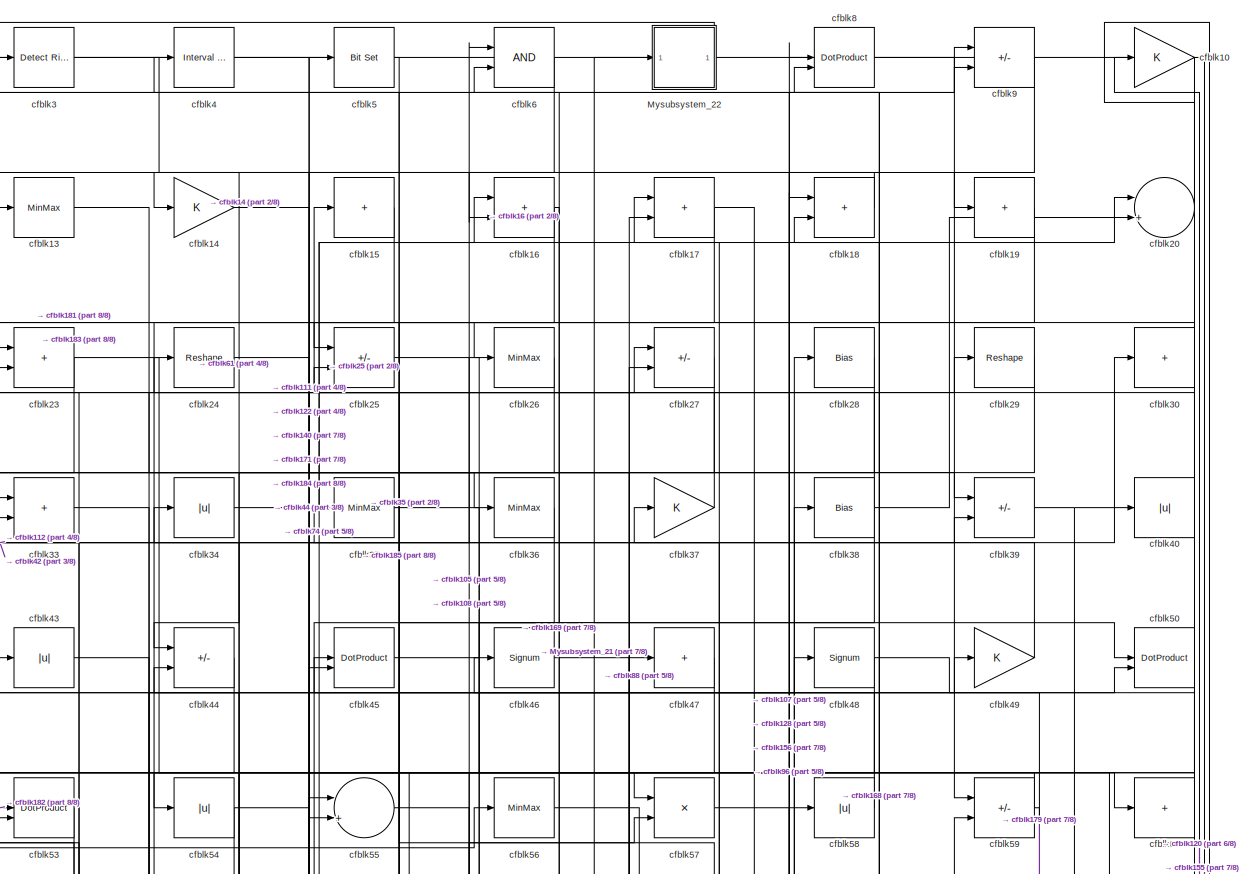
[diagram: root canvas - part 1/8, full width, top band]
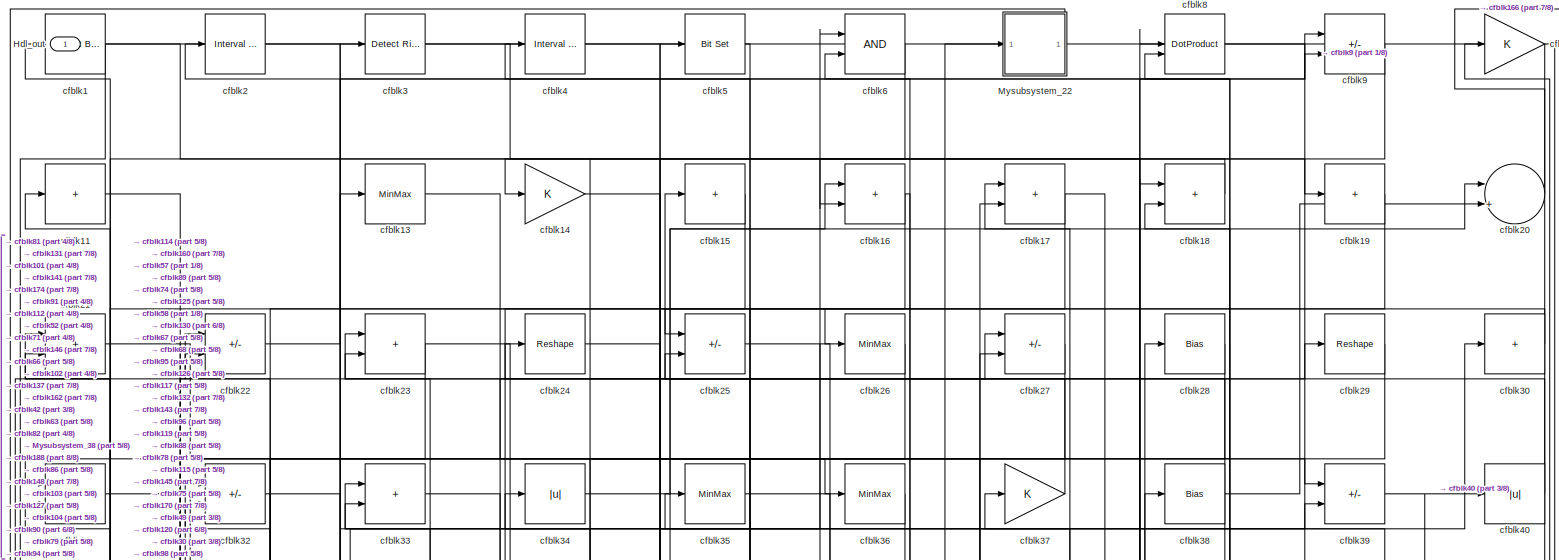
[diagram: root canvas - part 2/8, full width, top band]
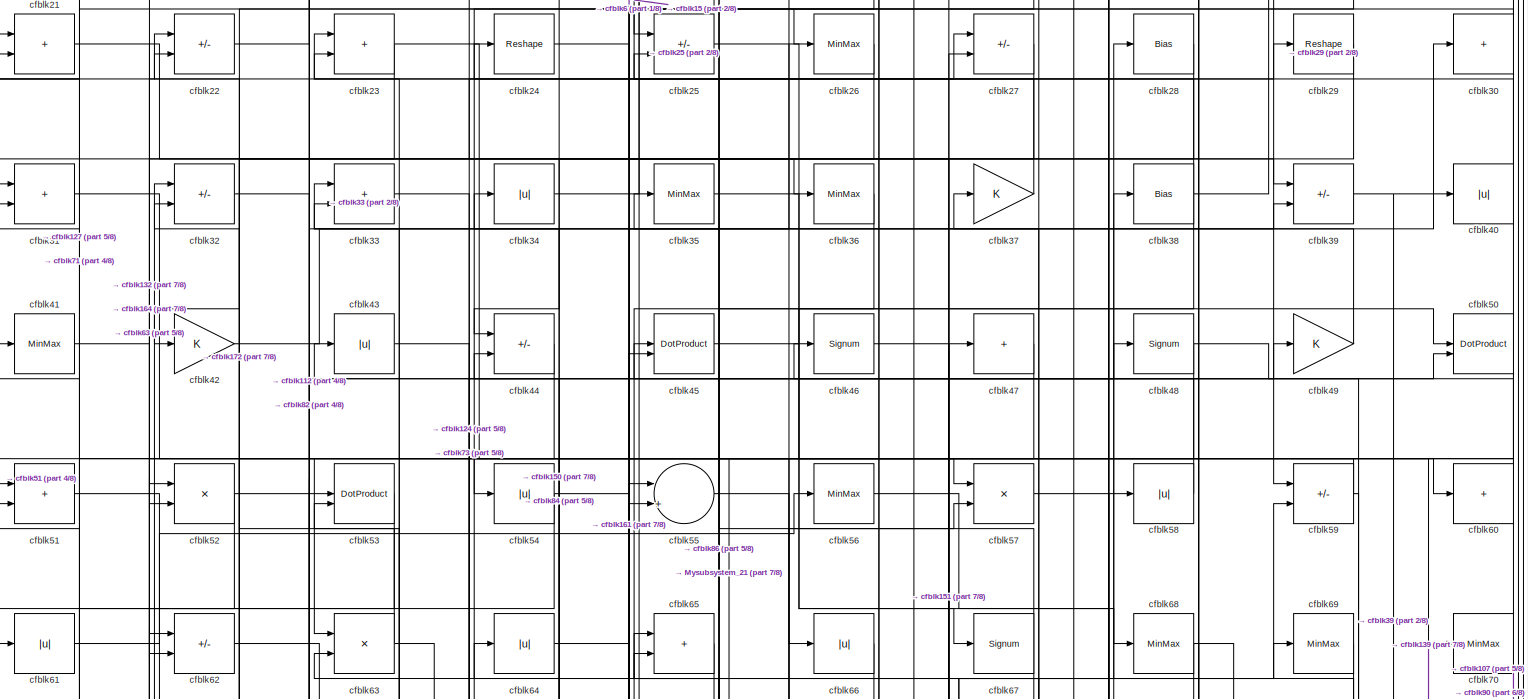
[diagram: root canvas - part 3/8, full width, top band]
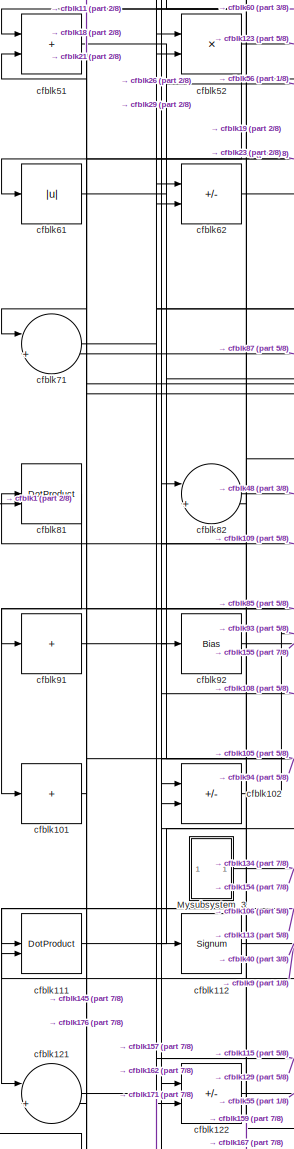
[diagram: root canvas - part 4/8, middle left region]
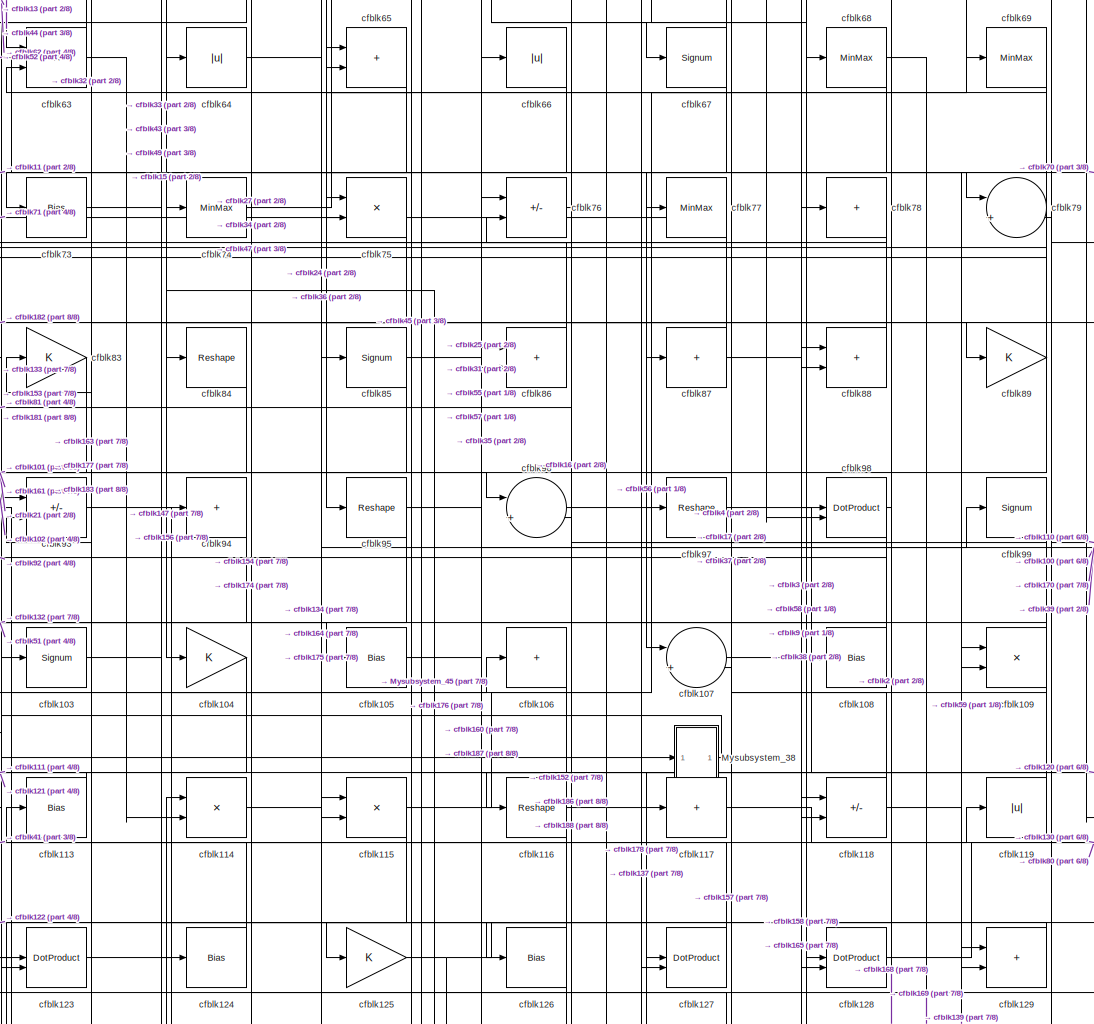
[diagram: root canvas - part 5/8, central region]
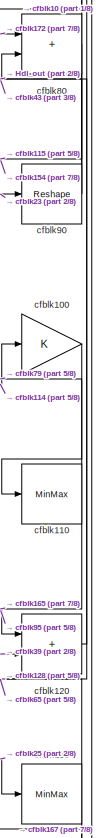
[diagram: root canvas - part 6/8, middle right region]
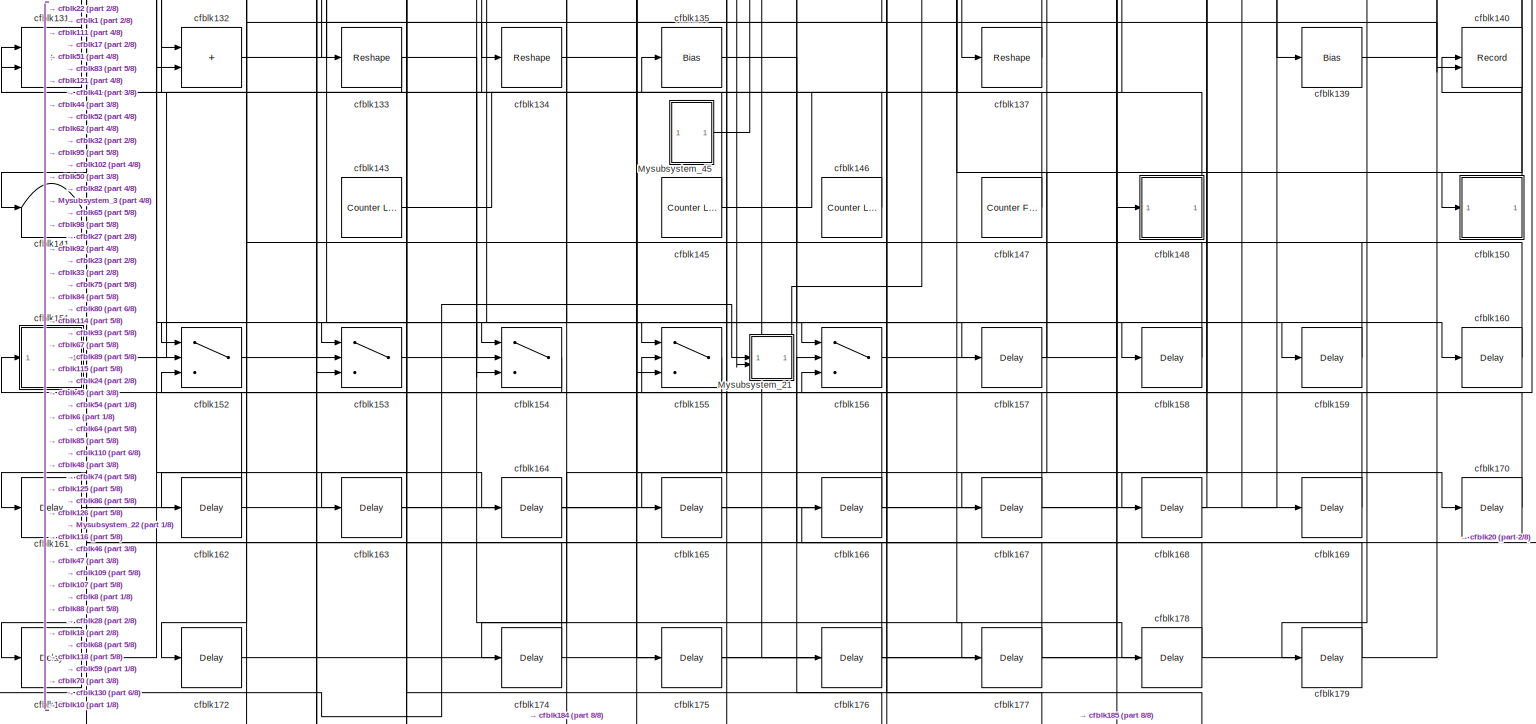
[diagram: root canvas - part 7/8, full width, bottom band]
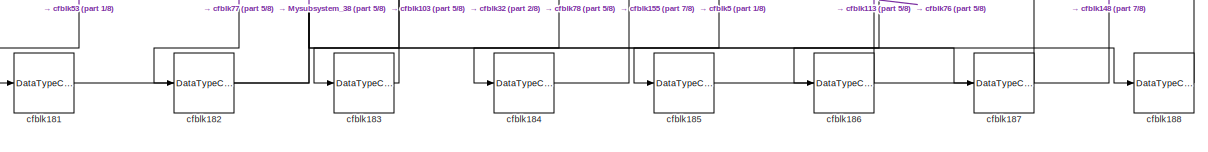
[diagram: root canvas - part 8/8, full width, bottom band]
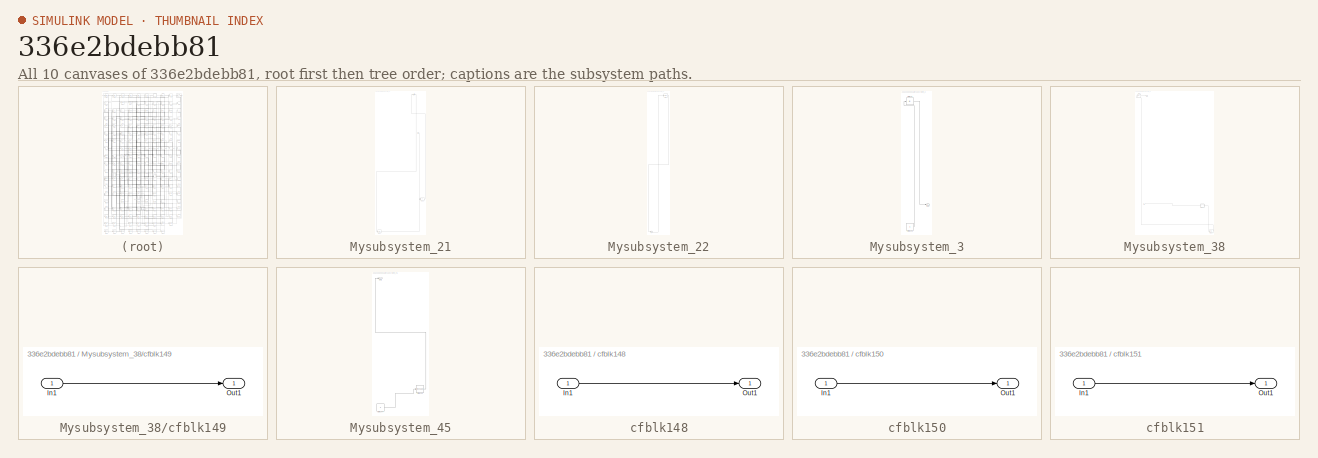
[diagram: thumbnail index - all 10 canvases of the model, root first then tree order]
MODEL slx_336e2bdebb81
KIND model
CONFIG AbsTol = auto
CONFIG EnableMultiTasking = off
CONFIG FixedStep = auto
CONFIG MaxStep = auto
CONFIG MinStep = auto
CONFIG RelTol = 1e-3
CONFIG SampleTimeConstraint = Unconstrained
CONFIG SolverName = VariableStepAuto
CONFIG StartTime = 0.0
CONFIG StopTime = 10.0
BLOCK [Outport] Hdl_out
  OutDataTypeStr = uint8
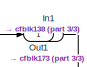
[diagram: Mysubsystem_21 - part 1/3, top right region]
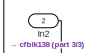
[diagram: Mysubsystem_21 - part 2/3, top right region]
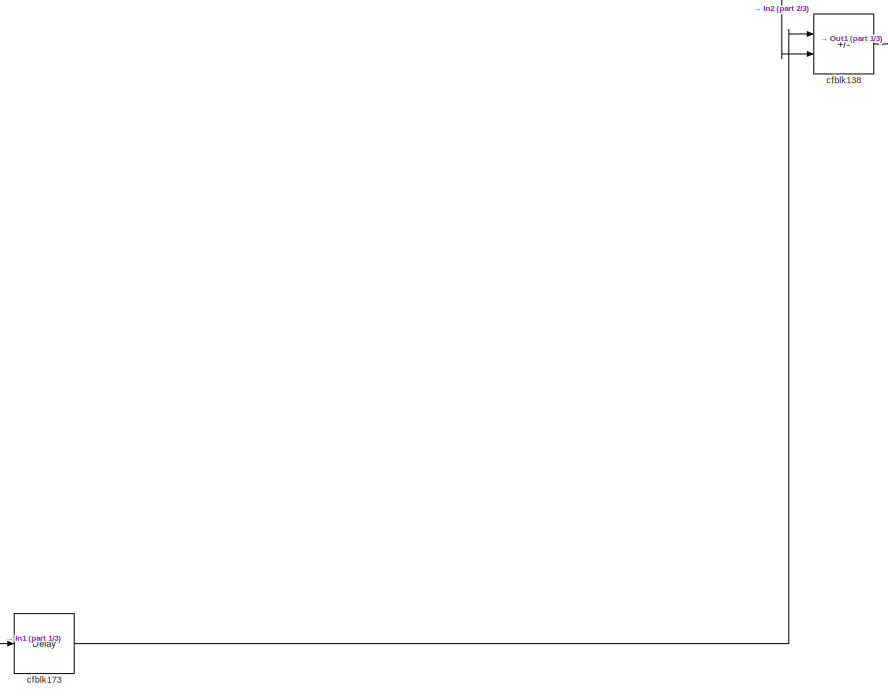
[diagram: Mysubsystem_21 - part 3/3, full width, bottom band]
BLOCK [SubSystem] Mysubsystem_21
  RTWFcnName = Mysubsystem_21
  RTWFcnNameOpts = User specified
  RTWFileNameOpts = Use function name
  RTWSystemCode = Reusable function
  TreatAsAtomicUnit = on
BLOCK [Inport] Mysubsystem_21/In1
BLOCK [Inport] Mysubsystem_21/In2
  Port = 2
BLOCK [Outport] Mysubsystem_21/Out1
BLOCK [Sum] Mysubsystem_21/cfblk138
  IconShape = rectangular
  Inputs = +-
BLOCK [Delay] Mysubsystem_21/cfblk173
  InputPortMap = u0
  SampleTime = 1
BLOCK [SubSystem] Mysubsystem_22
  RTWFcnName = Mysubsystem_22
  RTWFcnNameOpts = User specified
  RTWFileNameOpts = Use function name
  RTWSystemCode = Reusable function
  TreatAsAtomicUnit = on
BLOCK [Reference] Mysubsystem_22/cfblk7  REF=hdlsllib/Logic and Bit
Operations/Interval Test
  SourceBlock = hdlsllib/Logic and Bit\nOperations/Interval Test
  SourceType = Interval Test
BLOCK [Inport] Mysubsystem_22/u
BLOCK [Outport] Mysubsystem_22/y
BLOCK [SubSystem] Mysubsystem_3
  RTWFcnName = Mysubsystem_3
  RTWFcnNameOpts = User specified
  RTWFileNameOpts = Use function name
  RTWSystemCode = Reusable function
  TreatAsAtomicUnit = on
BLOCK [Outport] Mysubsystem_3/Out1
BLOCK [Constant] Mysubsystem_3/cfblk142
  SampleTime = -1
BLOCK [Abs] Mysubsystem_3/cfblk72
  SaturateOnIntegerOverflow = off
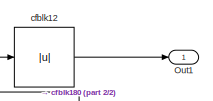
[diagram: Mysubsystem_38 - part 1/2, top left region]
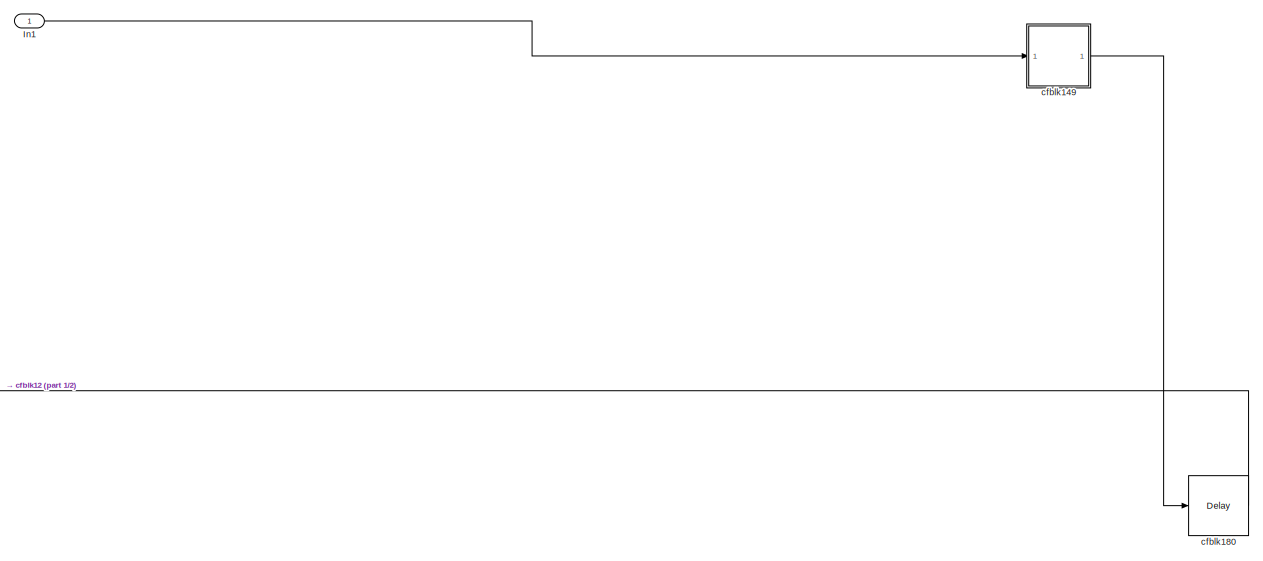
[diagram: Mysubsystem_38 - part 2/2, full width, bottom band]
BLOCK [SubSystem] Mysubsystem_38
  RTWFcnName = Mysubsystem_38
  RTWFcnNameOpts = User specified
  RTWFileNameOpts = Use function name
  RTWSystemCode = Reusable function
  TreatAsAtomicUnit = on
BLOCK [Inport] Mysubsystem_38/In1
BLOCK [Outport] Mysubsystem_38/Out1
BLOCK [Abs] Mysubsystem_38/cfblk12
  SaturateOnIntegerOverflow = off
BLOCK [SubSystem] Mysubsystem_38/cfblk149
  LibrarySourceBlock = hdlsllib/Ports &\nSubsystems/Subsystem
BLOCK [Inport] Mysubsystem_38/cfblk149/In1
BLOCK [Outport] Mysubsystem_38/cfblk149/Out1
BLOCK [Delay] Mysubsystem_38/cfblk180
  InputPortMap = u0
  SampleTime = 1
BLOCK [SubSystem] Mysubsystem_45
  RTWFcnName = Mysubsystem_45
  RTWFcnNameOpts = User specified
  RTWFileNameOpts = Use function name
  RTWSystemCode = Reusable function
  TreatAsAtomicUnit = on
BLOCK [Outport] Mysubsystem_45/Out1
BLOCK [Reshape] Mysubsystem_45/cfblk136
BLOCK [Constant] Mysubsystem_45/cfblk144
  SampleTime = -1
BLOCK [Reference] cfblk1  REF=simulink/Logic and Bit
Operations/Extract Bits
  LibrarySourceBlock = hdlsllib/Logic and Bit\nOperations/Extract Bits
  SourceBlock = simulink/Logic and Bit\nOperations/Extract Bits
  SourceType = Extract Bits
BLOCK [Gain] cfblk10
  OutDataTypeStr = uint8
BLOCK [Gain] cfblk100
  OutDataTypeStr = uint8
BLOCK [Sum] cfblk101
  IconShape = rectangular
  Inputs = +
  OutDataTypeStr = uint8
BLOCK [Sum] cfblk102
  IconShape = rectangular
  Inputs = +-
  OutDataTypeStr = uint8
BLOCK [Signum] cfblk103
BLOCK [Gain] cfblk104
  OutDataTypeStr = uint8
BLOCK [Bias] cfblk105
  Bias = 0.0
  SaturateOnIntegerOverflow = off
BLOCK [Sum] cfblk106
  IconShape = rectangular
  Inputs = +
  OutDataTypeStr = uint8
BLOCK [Sum] cfblk107
  Inputs = |++
  OutDataTypeStr = uint8
BLOCK [Bias] cfblk108
  Bias = 0.0
  SaturateOnIntegerOverflow = off
BLOCK [Product] cfblk109
  Inputs = */
  OutDataTypeStr = uint8
  RndMeth = Zero
  SaturateOnIntegerOverflow = on
BLOCK [Sum] cfblk11
  IconShape = rectangular
  Inputs = +
  OutDataTypeStr = uint8
BLOCK [MinMax] cfblk110
  OutDataTypeStr = uint8
BLOCK [DotProduct] cfblk111
  OutDataTypeStr = uint8
BLOCK [Signum] cfblk112
BLOCK [Bias] cfblk113
  Bias = 0.0
  SaturateOnIntegerOverflow = off
BLOCK [Product] cfblk114
  Inputs = */
  OutDataTypeStr = uint8
  RndMeth = Zero
  SaturateOnIntegerOverflow = on
BLOCK [Product] cfblk115
  Inputs = */
  OutDataTypeStr = uint8
  RndMeth = Zero
  SaturateOnIntegerOverflow = on
BLOCK [Reshape] cfblk116
BLOCK [Sum] cfblk117
  IconShape = rectangular
  Inputs = +
  OutDataTypeStr = uint8
BLOCK [Sum] cfblk118
  IconShape = rectangular
  Inputs = +-
  OutDataTypeStr = uint8
BLOCK [Abs] cfblk119
  OutDataTypeStr = uint8
  SaturateOnIntegerOverflow = off
BLOCK [Sum] cfblk120
  IconShape = rectangular
  OutDataTypeStr = uint8
BLOCK [Sum] cfblk121
  Inputs = |++
  OutDataTypeStr = uint8
BLOCK [Sum] cfblk122
  IconShape = rectangular
  Inputs = +-
  OutDataTypeStr = uint8
BLOCK [DotProduct] cfblk123
  OutDataTypeStr = uint8
BLOCK [Bias] cfblk124
  Bias = 0.0
  SaturateOnIntegerOverflow = off
BLOCK [Gain] cfblk125
  OutDataTypeStr = uint8
BLOCK [Bias] cfblk126
  Bias = 0.0
  SaturateOnIntegerOverflow = off
BLOCK [DotProduct] cfblk127
  OutDataTypeStr = uint8
BLOCK [DotProduct] cfblk128
  OutDataTypeStr = uint8
BLOCK [Sum] cfblk129
  IconShape = rectangular
  OutDataTypeStr = uint8
BLOCK [MinMax] cfblk13
  OutDataTypeStr = uint8
BLOCK [MinMax] cfblk130
  OutDataTypeStr = uint8
BLOCK [Sum] cfblk131
  IconShape = rectangular
  OutDataTypeStr = uint8
BLOCK [Sum] cfblk132
  IconShape = rectangular
  OutDataTypeStr = uint8
BLOCK [Reshape] cfblk133
BLOCK [Reshape] cfblk134
BLOCK [Bias] cfblk135
  Bias = 0.0
  SaturateOnIntegerOverflow = off
BLOCK [Reshape] cfblk137
BLOCK [Bias] cfblk139
  Bias = 0.0
  SaturateOnIntegerOverflow = off
BLOCK [Gain] cfblk14
  OutDataTypeStr = uint8
BLOCK [Record] cfblk140
  CompatibilityTag = XY
  FileSettingsInternal = {"entries":[{"content":{"excelSettings":{"content":{},"type":"Streamout.ExcelSettings"}},"type":"Streamout.FileSettingStorage","uuid":""}],"packageUris":["http:\/\/schema.mathworks.com\/mf0\/streamout_blocks\/R2020a"],"version":"1.0"}
  Layout = [1 1]
  SignalsInternal = {"entries":[{"content":{"signals":[{"content":{"blockPath":[],"dimensions":[1],"domain":"","lineColor":"#a2142f","plots":[1],"port":1,"signalID":59480,"signalName":"cfblk150"},"type":"RecordBlkView.Signal","uuid":""},{"content":{"blockPath":[],"dimensions":[1],"domain":"","lineColor":"#139fff","plots":[1],"port":2,"signalID":59483,"signalName":"cfblk54"},"type":"RecordBlkView.Signal","uuid":""}]},...<+143ch>
  VisualizationBindings = {"xyplotplugin":{"info":[{"series":[{"bindingParametersList":[{"parameter":"X-Axis","signalID":59480,"signalName":"cfblk150"},{"parameter":"Y-Axis","signalID":59483,"signalName":"cfblk54"}],"seriesID":63603}],"subplotID":1}]}}
  st = -1
BLOCK [Terminator] cfblk141
BLOCK [Reference] cfblk143  REF=hdlsllib/Sources/Counter
Limited
  SourceBlock = hdlsllib/Sources/Counter\nLimited
  SourceType = Counter Limited
BLOCK [Reference] cfblk145  REF=hdlsllib/Sources/Counter
Limited
  SourceBlock = hdlsllib/Sources/Counter\nLimited
  SourceType = Counter Limited
BLOCK [Reference] cfblk146  REF=hdlsllib/Sources/Counter
Limited
  SourceBlock = hdlsllib/Sources/Counter\nLimited
  SourceType = Counter Limited
BLOCK [Reference] cfblk147  REF=hdlsllib/Sources/Counter
Free-Running
  SourceBlock = hdlsllib/Sources/Counter\nFree-Running
  SourceType = Counter Free-Running
BLOCK [SubSystem] cfblk148
  LibrarySourceBlock = hdlsllib/Ports &\nSubsystems/Subsystem
BLOCK [Inport] cfblk148/In1
BLOCK [Outport] cfblk148/Out1
BLOCK [Sum] cfblk15
  IconShape = rectangular
  Inputs = +
  OutDataTypeStr = uint8
BLOCK [SubSystem] cfblk150
  LibrarySourceBlock = hdlsllib/Ports &\nSubsystems/Subsystem
BLOCK [Inport] cfblk150/In1
BLOCK [Outport] cfblk150/Out1
BLOCK [SubSystem] cfblk151
  LibrarySourceBlock = hdlsllib/Ports &\nSubsystems/Subsystem
BLOCK [Inport] cfblk151/In1
BLOCK [Outport] cfblk151/Out1
BLOCK [Switch] cfblk152
  InputSameDT = off
  OutDataTypeStr = uint8
  SaturateOnIntegerOverflow = off
BLOCK [Switch] cfblk153
  InputSameDT = off
  OutDataTypeStr = uint8
  SaturateOnIntegerOverflow = off
BLOCK [Switch] cfblk154
  InputSameDT = off
  OutDataTypeStr = uint8
  SaturateOnIntegerOverflow = off
BLOCK [Switch] cfblk155
  InputSameDT = off
  OutDataTypeStr = uint8
  SaturateOnIntegerOverflow = off
BLOCK [Switch] cfblk156
  InputSameDT = off
  OutDataTypeStr = uint8
  SaturateOnIntegerOverflow = off
BLOCK [Delay] cfblk157
  InputPortMap = u0
  SampleTime = 1
BLOCK [Delay] cfblk158
  InputPortMap = u0
  SampleTime = 1
BLOCK [Delay] cfblk159
  InputPortMap = u0
  SampleTime = 1
BLOCK [Sum] cfblk16
  IconShape = rectangular
  OutDataTypeStr = uint8
BLOCK [Delay] cfblk160
  InputPortMap = u0
  SampleTime = 1
BLOCK [Delay] cfblk161
  InputPortMap = u0
  SampleTime = 1
BLOCK [Delay] cfblk162
  InputPortMap = u0
  SampleTime = 1
BLOCK [Delay] cfblk163
  InputPortMap = u0
  SampleTime = 1
BLOCK [Delay] cfblk164
  InputPortMap = u0
  SampleTime = 1
BLOCK [Delay] cfblk165
  InputPortMap = u0
  SampleTime = 1
BLOCK [Delay] cfblk166
  InputPortMap = u0
  SampleTime = 1
BLOCK [Delay] cfblk167
  InputPortMap = u0
  SampleTime = 1
BLOCK [Delay] cfblk168
  InputPortMap = u0
  SampleTime = 1
BLOCK [Delay] cfblk169
  InputPortMap = u0
  SampleTime = 1
BLOCK [Sum] cfblk17
  IconShape = rectangular
  OutDataTypeStr = uint8
BLOCK [Delay] cfblk170
  InputPortMap = u0
  SampleTime = 1
BLOCK [Delay] cfblk171
  InputPortMap = u0
  SampleTime = 1
BLOCK [Delay] cfblk172
  InputPortMap = u0
  SampleTime = 1
BLOCK [Delay] cfblk174
  InputPortMap = u0
  SampleTime = 1
BLOCK [Delay] cfblk175
  InputPortMap = u0
  SampleTime = 1
BLOCK [Delay] cfblk176
  InputPortMap = u0
  SampleTime = 1
BLOCK [Delay] cfblk177
  InputPortMap = u0
  SampleTime = 1
BLOCK [Delay] cfblk178
  InputPortMap = u0
  SampleTime = 1
BLOCK [Delay] cfblk179
  InputPortMap = u0
  SampleTime = 1
BLOCK [Sum] cfblk18
  IconShape = rectangular
  OutDataTypeStr = uint8
BLOCK [DataTypeConversion] cfblk181
  OutDataTypeStr = uint8
  RndMeth = Floor
  SaturateOnIntegerOverflow = off
BLOCK [DataTypeConversion] cfblk182
  OutDataTypeStr = uint8
  RndMeth = Floor
  SaturateOnIntegerOverflow = off
BLOCK [DataTypeConversion] cfblk183
  OutDataTypeStr = uint8
  RndMeth = Floor
  SaturateOnIntegerOverflow = off
BLOCK [DataTypeConversion] cfblk184
  OutDataTypeStr = uint8
  RndMeth = Floor
  SaturateOnIntegerOverflow = off
BLOCK [DataTypeConversion] cfblk185
  OutDataTypeStr = uint8
  RndMeth = Floor
  SaturateOnIntegerOverflow = off
BLOCK [DataTypeConversion] cfblk186
  OutDataTypeStr = uint8
  RndMeth = Floor
  SaturateOnIntegerOverflow = off
BLOCK [DataTypeConversion] cfblk187
  OutDataTypeStr = uint8
  RndMeth = Floor
  SaturateOnIntegerOverflow = off
BLOCK [DataTypeConversion] cfblk188
  OutDataTypeStr = uint8
  RndMeth = Floor
  SaturateOnIntegerOverflow = off
BLOCK [Sum] cfblk19
  IconShape = rectangular
  Inputs = +
  OutDataTypeStr = uint8
BLOCK [Reference] cfblk2  REF=hdlsllib/Logic and Bit
Operations/Interval Test
  SourceBlock = hdlsllib/Logic and Bit\nOperations/Interval Test
  SourceType = Interval Test
BLOCK [Sum] cfblk20
  Inputs = |++
  OutDataTypeStr = uint8
BLOCK [Sum] cfblk21
  IconShape = rectangular
  OutDataTypeStr = uint8
BLOCK [Sum] cfblk22
  IconShape = rectangular
  Inputs = +-
  OutDataTypeStr = uint8
BLOCK [Sum] cfblk23
  IconShape = rectangular
  OutDataTypeStr = uint8
BLOCK [Reshape] cfblk24
BLOCK [Sum] cfblk25
  IconShape = rectangular
  Inputs = +-
  OutDataTypeStr = uint8
BLOCK [MinMax] cfblk26
  OutDataTypeStr = uint8
BLOCK [Sum] cfblk27
  IconShape = rectangular
  Inputs = +-
  OutDataTypeStr = uint8
BLOCK [Bias] cfblk28
  Bias = 0.0
  SaturateOnIntegerOverflow = off
BLOCK [Reshape] cfblk29
BLOCK [Reference] cfblk3  REF=hdlsllib/Logic and Bit
Operations/Detect Rise
Nonnegative
  SourceBlock = hdlsllib/Logic and Bit\nOperations/Detect Rise\nNonnegative
  SourceType = Detect Rise Nonnegative
BLOCK [Sum] cfblk30
  IconShape = rectangular
  Inputs = +
  OutDataTypeStr = uint8
BLOCK [Sum] cfblk31
  IconShape = rectangular
  OutDataTypeStr = uint8
BLOCK [Sum] cfblk32
  IconShape = rectangular
  Inputs = +-
  OutDataTypeStr = uint8
BLOCK [Sum] cfblk33
  IconShape = rectangular
  OutDataTypeStr = uint8
BLOCK [Abs] cfblk34
  OutDataTypeStr = uint8
  SaturateOnIntegerOverflow = off
BLOCK [MinMax] cfblk35
  OutDataTypeStr = uint8
BLOCK [MinMax] cfblk36
  OutDataTypeStr = uint8
BLOCK [Gain] cfblk37
  OutDataTypeStr = uint8
BLOCK [Bias] cfblk38
  Bias = 0.0
  SaturateOnIntegerOverflow = off
BLOCK [Sum] cfblk39
  IconShape = rectangular
  Inputs = +-
  OutDataTypeStr = uint8
BLOCK [Reference] cfblk4  REF=hdlsllib/Logic and Bit
Operations/Interval Test
  SourceBlock = hdlsllib/Logic and Bit\nOperations/Interval Test
  SourceType = Interval Test
BLOCK [Abs] cfblk40
  OutDataTypeStr = uint8
  SaturateOnIntegerOverflow = off
BLOCK [MinMax] cfblk41
  OutDataTypeStr = uint8
BLOCK [Gain] cfblk42
  OutDataTypeStr = uint8
BLOCK [Abs] cfblk43
  OutDataTypeStr = uint8
  SaturateOnIntegerOverflow = off
BLOCK [Sum] cfblk44
  IconShape = rectangular
  Inputs = +-
  OutDataTypeStr = uint8
BLOCK [DotProduct] cfblk45
  OutDataTypeStr = uint8
BLOCK [Signum] cfblk46
BLOCK [Sum] cfblk47
  IconShape = rectangular
  Inputs = +
  OutDataTypeStr = uint8
BLOCK [Signum] cfblk48
BLOCK [Gain] cfblk49
  OutDataTypeStr = uint8
BLOCK [Reference] cfblk5  REF=simulink/Logic and Bit
Operations/Bit Set
  LibrarySourceBlock = hdlsllib/Logic and Bit\nOperations/Bit Set
  SourceBlock = simulink/Logic and Bit\nOperations/Bit Set
  SourceType = Bit Set
BLOCK [DotProduct] cfblk50
  OutDataTypeStr = uint8
BLOCK [Sum] cfblk51
  IconShape = rectangular
  OutDataTypeStr = uint8
BLOCK [Product] cfblk52
  Inputs = */
  OutDataTypeStr = uint8
  RndMeth = Zero
  SaturateOnIntegerOverflow = on
BLOCK [DotProduct] cfblk53
  OutDataTypeStr = uint8
BLOCK [Abs] cfblk54
  OutDataTypeStr = uint8
  SaturateOnIntegerOverflow = off
BLOCK [Sum] cfblk55
  Inputs = |++
  OutDataTypeStr = uint8
BLOCK [MinMax] cfblk56
  OutDataTypeStr = uint8
BLOCK [Product] cfblk57
  Inputs = */
  OutDataTypeStr = uint8
  RndMeth = Zero
  SaturateOnIntegerOverflow = on
BLOCK [Abs] cfblk58
  OutDataTypeStr = uint8
  SaturateOnIntegerOverflow = off
BLOCK [Sum] cfblk59
  IconShape = rectangular
  Inputs = +-
  OutDataTypeStr = uint8
BLOCK [Logic] cfblk6
  AllPortsSameDT = off
  OutDataTypeStr = boolean
BLOCK [Sum] cfblk60
  IconShape = rectangular
  Inputs = +
  OutDataTypeStr = uint8
BLOCK [Abs] cfblk61
  OutDataTypeStr = uint8
  SaturateOnIntegerOverflow = off
BLOCK [Sum] cfblk62
  IconShape = rectangular
  Inputs = +-
  OutDataTypeStr = uint8
BLOCK [Product] cfblk63
  Inputs = */
  OutDataTypeStr = uint8
  RndMeth = Zero
  SaturateOnIntegerOverflow = on
BLOCK [Abs] cfblk64
  OutDataTypeStr = uint8
  SaturateOnIntegerOverflow = off
BLOCK [Sum] cfblk65
  IconShape = rectangular
  OutDataTypeStr = uint8
BLOCK [Abs] cfblk66
  OutDataTypeStr = uint8
  SaturateOnIntegerOverflow = off
BLOCK [Signum] cfblk67
BLOCK [MinMax] cfblk68
  OutDataTypeStr = uint8
BLOCK [MinMax] cfblk69
  OutDataTypeStr = uint8
BLOCK [MinMax] cfblk70
  OutDataTypeStr = uint8
BLOCK [Sum] cfblk71
  Inputs = |++
  OutDataTypeStr = uint8
BLOCK [Bias] cfblk73
  Bias = 0.0
  SaturateOnIntegerOverflow = off
BLOCK [MinMax] cfblk74
  OutDataTypeStr = uint8
BLOCK [Product] cfblk75
  Inputs = */
  OutDataTypeStr = uint8
  RndMeth = Zero
  SaturateOnIntegerOverflow = on
BLOCK [Sum] cfblk76
  IconShape = rectangular
  Inputs = +-
  OutDataTypeStr = uint8
BLOCK [MinMax] cfblk77
  OutDataTypeStr = uint8
BLOCK [Sum] cfblk78
  IconShape = rectangular
  Inputs = +
  OutDataTypeStr = uint8
BLOCK [Sum] cfblk79
  Inputs = |++
  OutDataTypeStr = uint8
BLOCK [DotProduct] cfblk8
  OutDataTypeStr = uint8
BLOCK [Sum] cfblk80
  IconShape = rectangular
  OutDataTypeStr = uint8
BLOCK [DotProduct] cfblk81
  OutDataTypeStr = uint8
BLOCK [Sum] cfblk82
  Inputs = |++
  OutDataTypeStr = uint8
BLOCK [Gain] cfblk83
  OutDataTypeStr = uint8
BLOCK [Reshape] cfblk84
BLOCK [Signum] cfblk85
BLOCK [Sum] cfblk86
  IconShape = rectangular
  OutDataTypeStr = uint8
BLOCK [Sum] cfblk87
  IconShape = rectangular
  Inputs = +
  OutDataTypeStr = uint8
BLOCK [Sum] cfblk88
  IconShape = rectangular
  OutDataTypeStr = uint8
BLOCK [Gain] cfblk89
  OutDataTypeStr = uint8
BLOCK [Sum] cfblk9
  IconShape = rectangular
  Inputs = +-
  OutDataTypeStr = uint8
BLOCK [Reshape] cfblk90
BLOCK [Sum] cfblk91
  IconShape = rectangular
  Inputs = +
  OutDataTypeStr = uint8
BLOCK [Bias] cfblk92
  Bias = 0.0
  SaturateOnIntegerOverflow = off
BLOCK [Sum] cfblk93
  IconShape = rectangular
  Inputs = +-
  OutDataTypeStr = uint8
BLOCK [Sum] cfblk94
  IconShape = rectangular
  Inputs = +
  OutDataTypeStr = uint8
BLOCK [Reshape] cfblk95
BLOCK [Sum] cfblk96
  Inputs = |++
  OutDataTypeStr = uint8
BLOCK [Reshape] cfblk97
BLOCK [DotProduct] cfblk98
  OutDataTypeStr = uint8
BLOCK [Signum] cfblk99
LINE Mysubsystem_21/In1:1 -> Mysubsystem_21/cfblk173:1
LINE Mysubsystem_21/In2:1 -> Mysubsystem_21/cfblk138:2
LINE Mysubsystem_21/cfblk138:1 -> Mysubsystem_21/Out1:1
LINE Mysubsystem_21/cfblk173:1 -> Mysubsystem_21/cfblk138:1
LINE Mysubsystem_21:1 -> Mysubsystem_22:1
LINE Mysubsystem_22/cfblk7:1 -> Mysubsystem_22/y:1
LINE Mysubsystem_22/u:1 -> Mysubsystem_22/cfblk7:1
LINE Mysubsystem_22:1 -> Mysubsystem_21:1
LINE Mysubsystem_3/cfblk142:1 -> Mysubsystem_3/cfblk72:1
LINE Mysubsystem_3/cfblk72:1 -> Mysubsystem_3/Out1:1
LINE Mysubsystem_38/In1:1 -> Mysubsystem_38/cfblk149:1
LINE Mysubsystem_38/cfblk12:1 -> Mysubsystem_38/Out1:1
LINE Mysubsystem_38/cfblk149/In1:1 -> Mysubsystem_38/cfblk149/Out1:1
LINE Mysubsystem_38/cfblk149:1 -> Mysubsystem_38/cfblk180:1
LINE Mysubsystem_38/cfblk180:1 -> Mysubsystem_38/cfblk12:1
NET Mysubsystem_38:1 -> Mysubsystem_38:1, cfblk13:1, cfblk187:1
NET Mysubsystem_3:1 -> cfblk134:1, cfblk154:3
LINE Mysubsystem_45/cfblk136:1 -> Mysubsystem_45/Out1:1
LINE Mysubsystem_45/cfblk144:1 -> Mysubsystem_45/cfblk136:1
LINE Mysubsystem_45:1 -> cfblk74:1
LINE cfblk100:1 -> cfblk110:1
LINE cfblk101:1 -> cfblk11:1
LINE cfblk102:1 -> cfblk93:1
LINE cfblk103:1 -> cfblk27:1
LINE cfblk104:1 -> cfblk123:2
NET cfblk105:1 -> cfblk118:2, cfblk57:2, cfblk99:1
LINE cfblk106:1 -> cfblk121:1
LINE cfblk107:1 -> cfblk9:1
NET cfblk108:1 -> cfblk77:1, cfblk92:1
NET cfblk109:1 -> cfblk137:1, cfblk81:1
LINE cfblk10:1 -> cfblk155:2
NET cfblk110:1 -> cfblk165:1, cfblk79:2
LINE cfblk111:1 -> cfblk55:2
NET cfblk112:1 -> cfblk40:1, cfblk9:2
LINE cfblk113:1 -> cfblk111:1
NET cfblk114:1 -> cfblk100:1, cfblk170:1, cfblk39:2
NET cfblk115:1 -> cfblk122:2, cfblk38:1
NET cfblk116:1 -> cfblk133:1, cfblk178:1
LINE cfblk117:1 -> cfblk119:1
NET cfblk118:1 -> cfblk139:1, cfblk63:2
LINE cfblk119:1 -> cfblk37:1
NET cfblk11:1 -> cfblk112:1, cfblk79:1
LINE cfblk120:1 -> cfblk10:1
LINE cfblk121:1 -> cfblk157:1
LINE cfblk122:1 -> cfblk55:1
LINE cfblk123:1 -> cfblk106:1
LINE cfblk124:1 -> cfblk83:1
NET cfblk125:1 -> cfblk127:1, cfblk176:1
NET cfblk126:1 -> cfblk152:1, cfblk64:1
LINE cfblk127:1 -> cfblk41:1
LINE cfblk128:1 -> cfblk80:2
LINE cfblk129:1 -> cfblk122:1
NET cfblk130:1 -> cfblk167:1, cfblk65:1
LINE cfblk131:1 -> cfblk22:1
LINE cfblk132:1 -> cfblk27:2
NET cfblk133:1 -> cfblk131:2, cfblk177:1
LINE cfblk134:1 -> cfblk85:1
LINE cfblk135:1 -> cfblk158:1
NET cfblk137:1 -> cfblk22:2, cfblk65:2
LINE cfblk139:1 -> cfblk70:1
LINE cfblk13:1 -> cfblk39:1
LINE cfblk143:1 -> cfblk17:2
NET cfblk145:1 -> cfblk111:2, cfblk28:1
LINE cfblk146:1 -> cfblk32:1
LINE cfblk147:1 -> cfblk114:1
LINE cfblk148/In1:1 -> cfblk148/Out1:1
NET cfblk148:1 -> cfblk131:1, cfblk33:2
LINE cfblk14:1 -> cfblk57:1
LINE cfblk150/In1:1 -> cfblk150/Out1:1
NET cfblk150:1 -> cfblk140:1, cfblk44:2
LINE cfblk151/In1:1 -> cfblk151/Out1:1
LINE cfblk151:1 -> cfblk47:1
LINE cfblk152:1 -> cfblk159:1
LINE cfblk153:1 -> cfblk135:1
LINE cfblk154:1 -> cfblk151:1
NET cfblk155:1 -> cfblk152:3, cfblk184:1
LINE cfblk156:1 -> cfblk8:1
LINE cfblk157:1 -> cfblk107:2
LINE cfblk158:1 -> cfblk118:1
LINE cfblk159:1 -> cfblk102:2
LINE cfblk15:1 -> cfblk104:1
LINE cfblk160:1 -> cfblk86:1
LINE cfblk161:1 -> cfblk45:2
LINE cfblk162:1 -> cfblk52:1
LINE cfblk163:1 -> cfblk109:1
LINE cfblk164:1 -> cfblk115:1
LINE cfblk165:1 -> cfblk98:1
LINE cfblk166:1 -> cfblk23:2
LINE cfblk167:1 -> cfblk82:1
LINE cfblk168:1 -> cfblk8:2
LINE cfblk169:1 -> cfblk6:2
NET cfblk16:1 -> cfblk125:1, cfblk126:1, cfblk26:1
LINE cfblk170:1 -> cfblk18:2
LINE cfblk171:1 -> cfblk62:1
LINE cfblk172:1 -> cfblk80:1
LINE cfblk174:1 -> cfblk1:1
LINE cfblk175:1 -> cfblk88:1
LINE cfblk176:1 -> cfblk51:2
LINE cfblk177:1 -> cfblk93:2
LINE cfblk178:1 -> cfblk156:3
LINE cfblk179:1 -> cfblk156:2
NET cfblk17:1 -> cfblk141:1, cfblk98:2
LINE cfblk181:1 -> cfblk103:1
LINE cfblk182:1 -> cfblk53:1
LINE cfblk183:1 -> cfblk53:2
LINE cfblk184:1 -> cfblk5:1
LINE cfblk185:1 -> cfblk148:1
LINE cfblk186:1 -> cfblk113:1
LINE cfblk187:1 -> cfblk76:1
LINE cfblk188:1 -> cfblk76:2
LINE cfblk18:1 -> cfblk14:1
LINE cfblk19:1 -> cfblk102:1
NET cfblk1:1 -> cfblk19:1, cfblk81:2
LINE cfblk20:1 -> cfblk166:1
NET cfblk21:1 -> cfblk117:1, cfblk96:1
LINE cfblk22:1 -> cfblk3:1
NET cfblk23:1 -> cfblk82:2, cfblk90:1
NET cfblk24:1 -> cfblk160:1, cfblk89:1
NET cfblk25:1 -> cfblk130:1, cfblk67:1
LINE cfblk26:1 -> cfblk52:2
LINE cfblk27:1 -> cfblk94:1
LINE cfblk28:1 -> cfblk31:1
LINE cfblk29:1 -> cfblk42:1
LINE cfblk2:1 -> cfblk86:2
LINE cfblk30:1 -> cfblk25:1
LINE cfblk31:1 -> cfblk66:1
NET cfblk32:1 -> cfblk162:1, cfblk188:1
LINE cfblk33:1 -> cfblk127:2
LINE cfblk34:1 -> cfblk20:1
LINE cfblk35:1 -> cfblk68:1
LINE cfblk36:1 -> cfblk95:1
LINE cfblk37:1 -> cfblk23:1
NET cfblk38:1 -> cfblk20:2, cfblk24:1, cfblk75:1
NET cfblk39:1 -> cfblk120:2, cfblk30:1
LINE cfblk3:1 -> cfblk78:1
LINE cfblk40:1 -> cfblk15:1
LINE cfblk41:1 -> cfblk164:1
LINE cfblk42:1 -> cfblk6:1
LINE cfblk43:1 -> cfblk124:1
NET cfblk44:1 -> cfblk132:2, cfblk63:1
NET cfblk45:1 -> cfblk50:1, cfblk60:1
LINE cfblk46:1 -> cfblk150:1
LINE cfblk47:1 -> cfblk84:1
NET cfblk48:1 -> Mysubsystem_21:2, cfblk50:2, cfblk71:1
LINE cfblk49:1 -> cfblk33:1
LINE cfblk4:1 -> cfblk36:1
LINE cfblk50:1 -> cfblk172:1
LINE cfblk51:1 -> cfblk105:1
NET cfblk52:1 -> cfblk123:1, cfblk62:2
LINE cfblk53:1 -> cfblk181:1
NET cfblk54:1 -> cfblk140:2, cfblk61:1
LINE cfblk55:1 -> cfblk108:1
LINE cfblk56:1 -> cfblk88:2
LINE cfblk57:1 -> cfblk128:2
NET cfblk58:1 -> cfblk25:2, cfblk35:1
NET cfblk59:1 -> cfblk179:1, cfblk54:1
LINE cfblk5:1 -> cfblk185:1
NET cfblk60:1 -> cfblk46:1, cfblk51:1
LINE cfblk61:1 -> cfblk56:1
LINE cfblk62:1 -> cfblk109:2
NET cfblk63:1 -> cfblk114:2, cfblk32:2
LINE cfblk64:1 -> cfblk175:1
NET cfblk65:1 -> cfblk152:2, cfblk153:2
LINE cfblk66:1 -> cfblk73:1
NET cfblk67:1 -> cfblk154:1, cfblk4:1
NET cfblk68:1 -> cfblk168:1, cfblk169:1, cfblk97:1
LINE cfblk69:1 -> cfblk128:1
NET cfblk6:1 -> cfblk155:3, cfblk171:1, cfblk44:1
LINE cfblk70:1 -> cfblk107:1
LINE cfblk71:1 -> cfblk29:1
NET cfblk73:1 -> cfblk129:2, cfblk49:1
NET cfblk74:1 -> cfblk16:1, cfblk59:2
LINE cfblk75:1 -> cfblk163:1
LINE cfblk76:1 -> cfblk186:1
NET cfblk77:1 -> cfblk182:1, cfblk75:2
LINE cfblk78:1 -> cfblk183:1
NET cfblk79:1 -> cfblk34:1, cfblk96:2
NET cfblk80:1 -> cfblk115:2, cfblk154:2
LINE cfblk81:1 -> cfblk91:1
LINE cfblk82:1 -> cfblk48:1
LINE cfblk83:1 -> cfblk161:1
LINE cfblk84:1 -> cfblk153:1
NET cfblk85:1 -> cfblk101:1, cfblk87:1
LINE cfblk86:1 -> cfblk45:1
NET cfblk87:1 -> cfblk69:1, cfblk71:2
LINE cfblk88:1 -> cfblk17:1
NET cfblk89:1 -> cfblk174:1, cfblk21:1, cfblk31:2
LINE cfblk8:1 -> cfblk59:1
NET cfblk90:1 -> Hdl_out:1, cfblk43:1
NET cfblk91:1 -> cfblk18:1, cfblk21:2
LINE cfblk92:1 -> cfblk155:1
LINE cfblk93:1 -> cfblk156:1
LINE cfblk94:1 -> cfblk121:2
NET cfblk95:1 -> cfblk120:1, cfblk132:1
LINE cfblk96:1 -> cfblk58:1
LINE cfblk97:1 -> cfblk129:1
NET cfblk98:1 -> cfblk153:3, cfblk2:1
LINE cfblk99:1 -> cfblk116:1
LINE cfblk9:1 -> cfblk16:2
note: NET lines group one-source signal fan-out (src -> all destinations, sorted); 1:1 wires keep LINE
